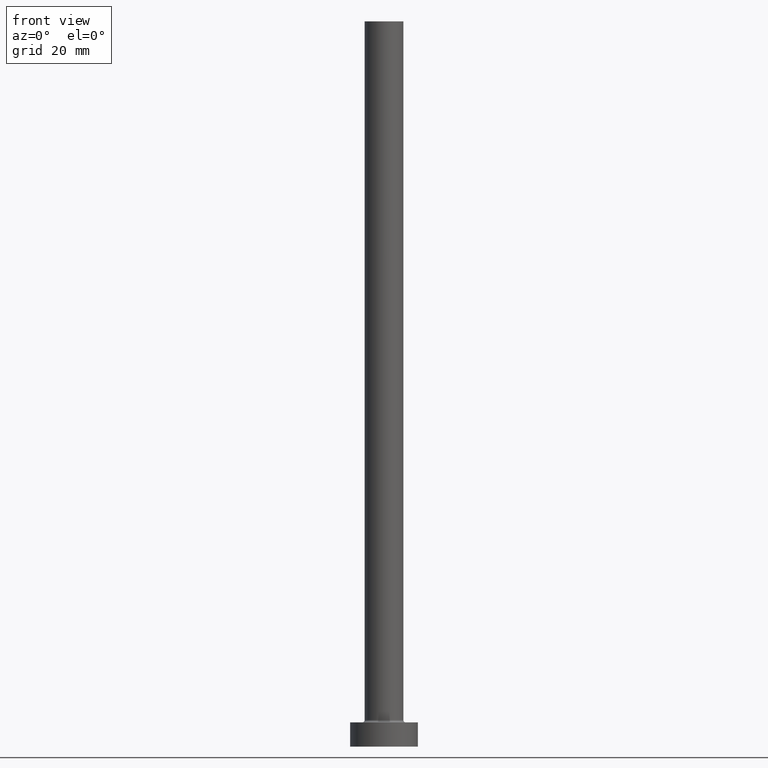
[diagram: clean part render]
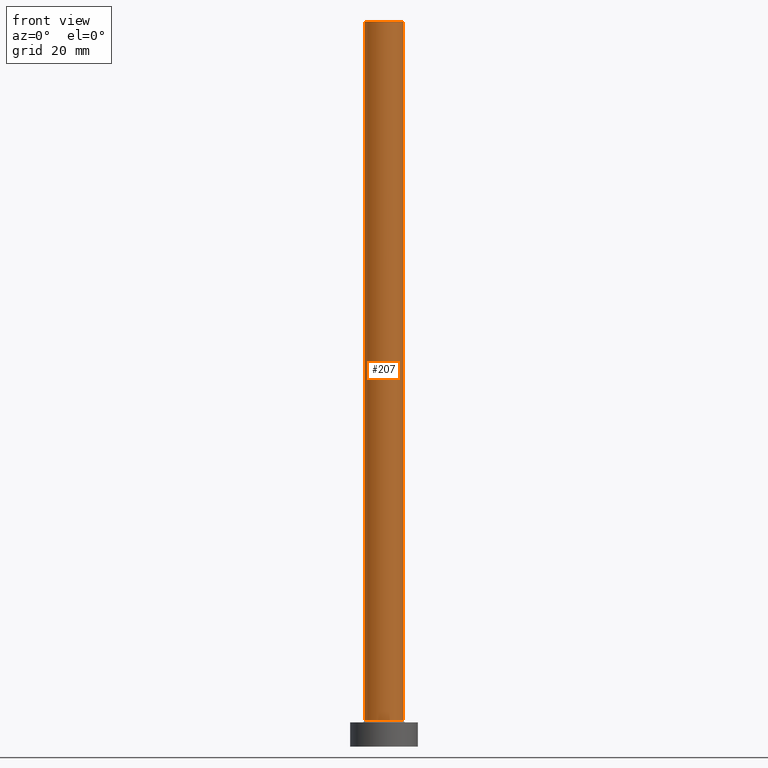
[diagram: same view with one face highlighted and labeled with its STEP entity id]
A machine part, front view. The second image highlights one B-rep face of the part: STEP entity #207.
In plain terms, the highlighted cylindrical surface (edge-blend (fillet) strip) has radius 4 mm, axis along (-0, -0, -1).
Its self-contained STEP definition (entity closure, byte-faithful):
#6 = CYLINDRICAL_SURFACE ( 'NONE', #351, 4.000000000000000000 ) ;
#44 = VERTEX_POINT ( 'NONE', #339 ) ;
#53 = DIRECTION ( 'NONE',  ( -0.000000000000000000, -0.000000000000000000, -1.000000000000000000 ) ) ;
#58 = DIRECTION ( 'NONE',  ( 1.000000000000000000, 0.000000000000000000, 0.000000000000000000 ) ) ;
#61 = VERTEX_POINT ( 'NONE', #144 ) ;
#86 = CARTESIAN_POINT ( 'NONE',  ( 0.000000000000000000, 0.000000000000000000, 150.0000000000000000 ) ) ;
#91 = VERTEX_POINT ( 'NONE', #103 ) ;
#92 = VECTOR ( 'NONE', #393, 1000.000000000000000 ) ;
#98 = VECTOR ( 'NONE', #53, 1000.000000000000000 ) ;
#103 = CARTESIAN_POINT ( 'NONE',  ( -4.000000000000000000, 0.000000000000000000, 5.500000000000005329 ) ) ;
#108 = CARTESIAN_POINT ( 'NONE',  ( 4.000000000000000000, 4.898587196589412829E-16, 5.500000000000005329 ) ) ;
#112 = ORIENTED_EDGE ( 'NONE', *, *, #363, .F. ) ;
#122 = DIRECTION ( 'NONE',  ( 1.000000000000000000, 0.000000000000000000, 0.000000000000000000 ) ) ;
#130 = EDGE_LOOP ( 'NONE', ( #112, #297, #421, #368 ) ) ;
#144 = CARTESIAN_POINT ( 'NONE',  ( -4.000000000000000000, 0.000000000000000000, 150.0000000000000000 ) ) ;
#147 = AXIS2_PLACEMENT_3D ( 'NONE', #86, #263, #122 ) ;
#156 = FACE_OUTER_BOUND ( 'NONE', #130, .T. ) ;
#165 = CIRCLE ( 'NONE', #147, 4.000000000000000000 ) ;
#186 = EDGE_CURVE ( 'NONE', #61, #44, #165, .T. ) ;
#188 = DIRECTION ( 'NONE',  ( -1.000000000000000000, 0.000000000000000000, 0.000000000000000000 ) ) ;
#200 = CARTESIAN_POINT ( 'NONE',  ( 0.000000000000000000, 0.000000000000000000, 5.500000000000005329 ) ) ;
#202 = EDGE_CURVE ( 'NONE', #61, #91, #259, .T. ) ;
#207 = ADVANCED_FACE ( 'NONE', ( #156 ), #6, .T. ) ;
#219 = AXIS2_PLACEMENT_3D ( 'NONE', #200, #375, #58 ) ;
#222 = CARTESIAN_POINT ( 'NONE',  ( 0.000000000000000000, 0.000000000000000000, 150.0000000000000000 ) ) ;
#227 = CARTESIAN_POINT ( 'NONE',  ( 4.000000000000000000, 4.898587196589412829E-16, 150.0000000000000000 ) ) ;
#253 = CIRCLE ( 'NONE', #219, 4.000000000000000000 ) ;
#259 = LINE ( 'NONE', #440, #92 ) ;
#263 = DIRECTION ( 'NONE',  ( 0.000000000000000000, 0.000000000000000000, 1.000000000000000000 ) ) ;
#274 = LINE ( 'NONE', #227, #98 ) ;
#297 = ORIENTED_EDGE ( 'NONE', *, *, #186, .F. ) ;
#298 = DIRECTION ( 'NONE',  ( -0.000000000000000000, -0.000000000000000000, -1.000000000000000000 ) ) ;
#316 = EDGE_CURVE ( 'NONE', #91, #445, #253, .T. ) ;
#339 = CARTESIAN_POINT ( 'NONE',  ( 4.000000000000000000, 4.898587196589412829E-16, 150.0000000000000000 ) ) ;
#351 = AXIS2_PLACEMENT_3D ( 'NONE', #222, #298, #188 ) ;
#363 = EDGE_CURVE ( 'NONE', #44, #445, #274, .T. ) ;
#368 = ORIENTED_EDGE ( 'NONE', *, *, #316, .T. ) ;
#375 = DIRECTION ( 'NONE',  ( 0.000000000000000000, 0.000000000000000000, 1.000000000000000000 ) ) ;
#393 = DIRECTION ( 'NONE',  ( -0.000000000000000000, -0.000000000000000000, -1.000000000000000000 ) ) ;
#421 = ORIENTED_EDGE ( 'NONE', *, *, #202, .T. ) ;
#440 = CARTESIAN_POINT ( 'NONE',  ( -4.000000000000000000, 0.000000000000000000, 150.0000000000000000 ) ) ;
#445 = VERTEX_POINT ( 'NONE', #108 ) ;